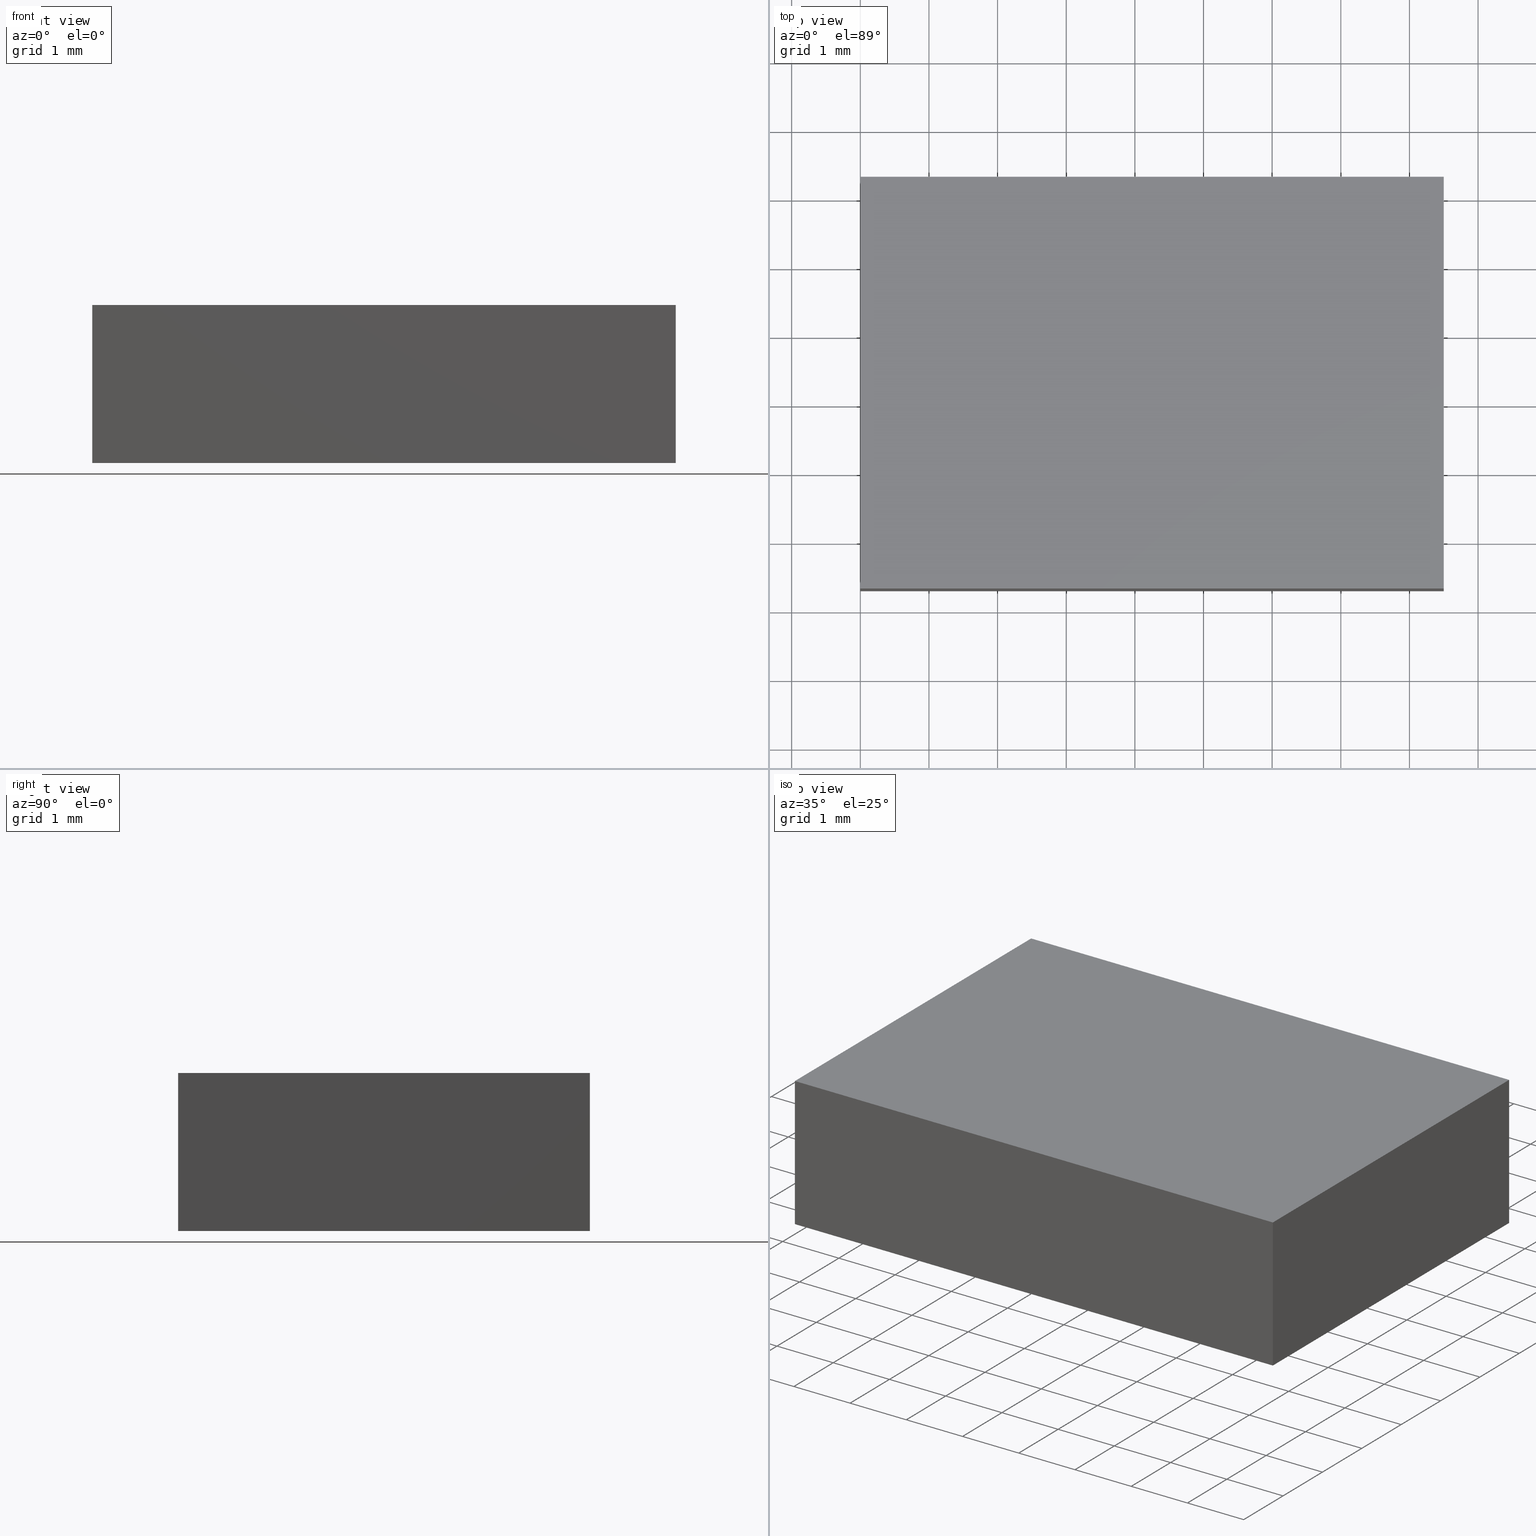
[diagram: canonical four-view strip — front | top / right | iso, engineering-drawing reading convention]
A machine part, canonical four-view strip (front | top / right | iso — engineering-drawing reading convention). The complete STEP part file that produces these views, byte-faithful:
ISO-10303-21;
HEADER;
FILE_DESCRIPTION (( 'STEP AP214' ),
    '1' );
FILE_NAME ('302503.STEP',
    '2019-08-13T02:38:50',
    ( '' ),
    ( '' ),
    'SwSTEP 2.0',
    'SolidWorks 2016',
    '' );
FILE_SCHEMA (( 'AUTOMOTIVE_DESIGN' ));
ENDSEC;

DATA;
#1 = CARTESIAN_POINT ( 'NONE',  ( 15.99958715517701600, 15.31264836690531800, 2.299999999999999800 ) ) ;
#2 = DIRECTION ( 'NONE',  ( -0.0000000000000000000, -0.0000000000000000000, -1.000000000000000000 ) ) ;
#3 = APPLICATION_CONTEXT ( 'automotive_design' ) ;
#4 = LINE ( 'NONE', #172, #96 ) ;
#5 = ORIENTED_EDGE ( 'NONE', *, *, #134, .F. ) ;
#6 = VECTOR ( 'NONE', #125, 1000.000000000000000 ) ;
#7 = PRESENTATION_LAYER_ASSIGNMENT (  '', '', ( #92 ) ) ;
#8 = SURFACE_STYLE_FILL_AREA ( #175 ) ;
#9 = DIRECTION ( 'NONE',  ( -0.0000000000000000000, -0.0000000000000000000, -1.000000000000000000 ) ) ;
#10 = CARTESIAN_POINT ( 'NONE',  ( 24.49958715517702100, 9.312648366905317900, 0.0000000000000000000 ) ) ;
#11 = VECTOR ( 'NONE', #120, 1000.000000000000000 ) ;
#12 = CARTESIAN_POINT ( 'NONE',  ( 15.99958715517702000, 9.312648366905321500, 2.299999999999999800 ) ) ;
#13 = DIRECTION ( 'NONE',  ( -1.000000000000000000, 4.081702296416016500E-016, 0.0000000000000000000 ) ) ;
#14 = DIRECTION ( 'NONE',  ( 4.081702296416016500E-016, 1.000000000000000000, -0.0000000000000000000 ) ) ;
#15 = EDGE_CURVE ( 'NONE', #156, #69, #195, .T. ) ;
#16 = FACE_OUTER_BOUND ( 'NONE', #73, .T. ) ;
#17 = UNCERTAINTY_MEASURE_WITH_UNIT (LENGTH_MEASURE( 1.000000000000000100E-005 ), #139, 'distance_accuracy_value', 'NONE');
#18 = LINE ( 'NONE', #155, #50 ) ;
#19 = PRODUCT_CONTEXT ( 'NONE', #80, 'mechanical' ) ;
#20 = DIRECTION ( 'NONE',  ( 0.0000000000000000000, 0.0000000000000000000, 1.000000000000000000 ) ) ;
#21 = EDGE_LOOP ( 'NONE', ( #184, #84, #25, #165 ) ) ;
#22 = ORIENTED_EDGE ( 'NONE', *, *, #57, .F. ) ;
#23 = COLOUR_RGB ( '',1.000000000000000000, 1.000000000000000000, 1.000000000000000000 ) ;
#24 = AXIS2_PLACEMENT_3D ( 'NONE', #36, #20, #38 ) ;
#25 = ORIENTED_EDGE ( 'NONE', *, *, #126, .F. ) ;
#26 = CARTESIAN_POINT ( 'NONE',  ( 15.99958715517701600, 15.31264836690531800, 0.0000000000000000000 ) ) ;
#27 = DIRECTION ( 'NONE',  ( 1.000000000000000000, 5.782411586589360600E-016, -0.0000000000000000000 ) ) ;
#28 = ORIENTED_EDGE ( 'NONE', *, *, #103, .T. ) ;
#29 = SHAPE_DEFINITION_REPRESENTATION ( #55, #33 ) ;
#30 = DIRECTION ( 'NONE',  ( 1.000000000000000000, -4.081702296416016500E-016, 0.0000000000000000000 ) ) ;
#31 = PLANE ( 'NONE',  #187 ) ;
#32 = CARTESIAN_POINT ( 'NONE',  ( 24.49958715517702100, 15.31264836690531600, 2.299999999999999800 ) ) ;
#33 = ADVANCED_BREP_SHAPE_REPRESENTATION ( '302503', ( #149, #24 ), #123 ) ;
#34 = CARTESIAN_POINT ( 'NONE',  ( 15.99958715517702000, 9.312648366905321500, 2.299999999999999800 ) ) ;
#35 = ORIENTED_EDGE ( 'NONE', *, *, #197, .F. ) ;
#36 = CARTESIAN_POINT ( 'NONE',  ( 0.0000000000000000000, 0.0000000000000000000, 0.0000000000000000000 ) ) ;
#37 =( NAMED_UNIT ( * ) SI_UNIT ( $, .STERADIAN. ) SOLID_ANGLE_UNIT ( ) );
#38 = DIRECTION ( 'NONE',  ( 1.000000000000000000, 0.0000000000000000000, 0.0000000000000000000 ) ) ;
#39 = LINE ( 'NONE', #137, #106 ) ;
#40 =( GEOMETRIC_REPRESENTATION_CONTEXT ( 3 ) GLOBAL_UNCERTAINTY_ASSIGNED_CONTEXT ( ( #110 ) ) GLOBAL_UNIT_ASSIGNED_CONTEXT ( ( #95, #189, #37 ) ) REPRESENTATION_CONTEXT ( 'NONE', 'WORKASPACE' ) );
#41 = EDGE_CURVE ( 'NONE', #117, #68, #39, .T. ) ;
#42 = LINE ( 'NONE', #111, #102 ) ;
#43 = LINE ( 'NONE', #143, #167 ) ;
#44 =( NAMED_UNIT ( * ) PLANE_ANGLE_UNIT ( ) SI_UNIT ( $, .RADIAN. ) );
#45 = CARTESIAN_POINT ( 'NONE',  ( 15.99958715517701600, 15.31264836690531800, 2.299999999999999800 ) ) ;
#46 = DIRECTION ( 'NONE',  ( 1.000000000000000000, 0.0000000000000000000, -0.0000000000000000000 ) ) ;
#47 = DIRECTION ( 'NONE',  ( 5.782411586589360600E-016, -1.000000000000000000, 0.0000000000000000000 ) ) ;
#48 = CARTESIAN_POINT ( 'NONE',  ( 0.0000000000000000000, 0.0000000000000000000, 0.0000000000000000000 ) ) ;
#49 = VECTOR ( 'NONE', #127, 1000.000000000000000 ) ;
#50 = VECTOR ( 'NONE', #170, 1000.000000000000000 ) ;
#51 = APPLICATION_PROTOCOL_DEFINITION ( 'draft international standard', 'automotive_design', 1998, #80 ) ;
#52 = PRODUCT_DEFINITION ( 'δ֪', '', #154, #86 ) ;
#53 = ORIENTED_EDGE ( 'NONE', *, *, #148, .T. ) ;
#54 = LINE ( 'NONE', #157, #11 ) ;
#55 = PRODUCT_DEFINITION_SHAPE ( 'NONE', 'NONE',  #52 ) ;
#56 = AXIS2_PLACEMENT_3D ( 'NONE', #199, #88, #105 ) ;
#57 = EDGE_CURVE ( 'NONE', #104, #72, #152, .T. ) ;
#58 = CARTESIAN_POINT ( 'NONE',  ( 15.99958715517702000, 9.312648366905321500, 0.0000000000000000000 ) ) ;
#59 = FILL_AREA_STYLE ('',( #168 ) ) ;
#60 = DIRECTION ( 'NONE',  ( 0.0000000000000000000, 0.0000000000000000000, 1.000000000000000000 ) ) ;
#61 = ORIENTED_EDGE ( 'NONE', *, *, #116, .F. ) ;
#62 =( NAMED_UNIT ( * ) SI_UNIT ( $, .STERADIAN. ) SOLID_ANGLE_UNIT ( ) );
#63 = EDGE_CURVE ( 'NONE', #150, #69, #191, .T. ) ;
#64 = DIRECTION ( 'NONE',  ( 0.0000000000000000000, 0.0000000000000000000, 1.000000000000000000 ) ) ;
#65 =( NAMED_UNIT ( * ) SI_UNIT ( $, .STERADIAN. ) SOLID_ANGLE_UNIT ( ) );
#66 = ORIENTED_EDGE ( 'NONE', *, *, #160, .T. ) ;
#67 = VECTOR ( 'NONE', #171, 1000.000000000000000 ) ;
#68 = VERTEX_POINT ( 'NONE', #26 ) ;
#69 = VERTEX_POINT ( 'NONE', #10 ) ;
#70 = VECTOR ( 'NONE', #9, 1000.000000000000000 ) ;
#71 = STYLED_ITEM ( 'NONE', ( #136 ), #149 ) ;
#72 = VERTEX_POINT ( 'NONE', #109 ) ;
#73 = EDGE_LOOP ( 'NONE', ( #183, #22, #78, #161 ) ) ;
#74 = ORIENTED_EDGE ( 'NONE', *, *, #103, .F. ) ;
#75 = PRODUCT_RELATED_PRODUCT_CATEGORY ( 'part', '', ( #198 ) ) ;
#76 = PLANE ( 'NONE',  #81 ) ;
#77 = AXIS2_PLACEMENT_3D ( 'NONE', #48, #64, #108 ) ;
#78 = ORIENTED_EDGE ( 'NONE', *, *, #148, .F. ) ;
#79 = SURFACE_SIDE_STYLE ('',( #8 ) ) ;
#80 = APPLICATION_CONTEXT ( 'automotive_design' ) ;
#81 = AXIS2_PLACEMENT_3D ( 'NONE', #122, #90, #107 ) ;
#82 = ORIENTED_EDGE ( 'NONE', *, *, #201, .F. ) ;
#83 = ADVANCED_FACE ( 'NONE', ( #87 ), #144, .F. ) ;
#84 = ORIENTED_EDGE ( 'NONE', *, *, #41, .F. ) ;
#85 = ADVANCED_FACE ( 'NONE', ( #128 ), #158, .F. ) ;
#86 = PRODUCT_DEFINITION_CONTEXT ( 'detailed design', #3, 'design' ) ;
#87 = FACE_OUTER_BOUND ( 'NONE', #193, .T. ) ;
#88 = DIRECTION ( 'NONE',  ( -1.000000000000000000, 0.0000000000000000000, 0.0000000000000000000 ) ) ;
#89 = EDGE_LOOP ( 'NONE', ( #28, #82, #5, #99 ) ) ;
#90 = DIRECTION ( 'NONE',  ( -2.040851148208007500E-016, -1.000000000000000000, 0.0000000000000000000 ) ) ;
#91 = DIRECTION ( 'NONE',  ( -0.0000000000000000000, -0.0000000000000000000, -1.000000000000000000 ) ) ;
#92 = STYLED_ITEM ( 'NONE', ( #173 ), #33 ) ;
#93 = CARTESIAN_POINT ( 'NONE',  ( 15.99958715517702000, 9.312648366905321500, 2.299999999999999800 ) ) ;
#94 = LINE ( 'NONE', #112, #49 ) ;
#95 =( LENGTH_UNIT ( ) NAMED_UNIT ( * ) SI_UNIT ( .MILLI., .METRE. ) );
#96 = VECTOR ( 'NONE', #101, 1000.000000000000000 ) ;
#97 = ORIENTED_EDGE ( 'NONE', *, *, #201, .T. ) ;
#98 = FACE_OUTER_BOUND ( 'NONE', #21, .T. ) ;
#99 = ORIENTED_EDGE ( 'NONE', *, *, #41, .T. ) ;
#100 = VERTEX_POINT ( 'NONE', #34 ) ;
#101 = DIRECTION ( 'NONE',  ( -1.000000000000000000, 2.040851148208007300E-016, -0.0000000000000000000 ) ) ;
#102 = VECTOR ( 'NONE', #2, 1000.000000000000000 ) ;
#103 = EDGE_CURVE ( 'NONE', #68, #150, #43, .T. ) ;
#104 = VERTEX_POINT ( 'NONE', #32 ) ;
#105 = DIRECTION ( 'NONE',  ( 0.0000000000000000000, 0.0000000000000000000, 1.000000000000000000 ) ) ;
#106 = VECTOR ( 'NONE', #91, 1000.000000000000000 ) ;
#107 = DIRECTION ( 'NONE',  ( 1.000000000000000000, -2.040851148208007500E-016, 0.0000000000000000000 ) ) ;
#108 = DIRECTION ( 'NONE',  ( 1.000000000000000000, 0.0000000000000000000, -0.0000000000000000000 ) ) ;
#109 = CARTESIAN_POINT ( 'NONE',  ( 24.49958715517702100, 15.31264836690531600, 0.0000000000000000000 ) ) ;
#110 = UNCERTAINTY_MEASURE_WITH_UNIT (LENGTH_MEASURE( 1.000000000000000100E-005 ), #95, 'distance_accuracy_value', 'NONE');
#111 = CARTESIAN_POINT ( 'NONE',  ( 15.99958715517702000, 9.312648366905321500, 2.299999999999999800 ) ) ;
#112 = CARTESIAN_POINT ( 'NONE',  ( 24.49958715517702100, 15.31264836690531600, 0.0000000000000000000 ) ) ;
#113 = EDGE_LOOP ( 'NONE', ( #162, #66, #53, #151 ) ) ;
#114 = ORIENTED_EDGE ( 'NONE', *, *, #63, .F. ) ;
#115 = MECHANICAL_DESIGN_GEOMETRIC_PRESENTATION_REPRESENTATION (  '', ( #92 ), #40 ) ;
#116 = EDGE_CURVE ( 'NONE', #72, #68, #4, .T. ) ;
#117 = VERTEX_POINT ( 'NONE', #1 ) ;
#118 = ORIENTED_EDGE ( 'NONE', *, *, #63, .T. ) ;
#119 = DIRECTION ( 'NONE',  ( -0.0000000000000000000, -0.0000000000000000000, -1.000000000000000000 ) ) ;
#120 = DIRECTION ( 'NONE',  ( 5.782411586589360600E-016, -1.000000000000000000, 0.0000000000000000000 ) ) ;
#121 = CARTESIAN_POINT ( 'NONE',  ( 24.49958715517702100, 9.312648366905317900, 2.299999999999999800 ) ) ;
#122 = CARTESIAN_POINT ( 'NONE',  ( 15.99958715517701600, 15.31264836690531800, 2.299999999999999800 ) ) ;
#123 =( GEOMETRIC_REPRESENTATION_CONTEXT ( 3 ) GLOBAL_UNCERTAINTY_ASSIGNED_CONTEXT ( ( #188 ) ) GLOBAL_UNIT_ASSIGNED_CONTEXT ( ( #163, #129, #65 ) ) REPRESENTATION_CONTEXT ( 'NONE', 'WORKASPACE' ) );
#124 = ORIENTED_EDGE ( 'NONE', *, *, #15, .F. ) ;
#125 = DIRECTION ( 'NONE',  ( -1.000000000000000000, 2.040851148208007300E-016, -0.0000000000000000000 ) ) ;
#126 = EDGE_CURVE ( 'NONE', #104, #117, #164, .T. ) ;
#127 = DIRECTION ( 'NONE',  ( -0.0000000000000000000, 1.000000000000000000, -0.0000000000000000000 ) ) ;
#128 = FACE_OUTER_BOUND ( 'NONE', #194, .T. ) ;
#129 =( NAMED_UNIT ( * ) PLANE_ANGLE_UNIT ( ) SI_UNIT ( $, .RADIAN. ) );
#130 = LINE ( 'NONE', #12, #186 ) ;
#131 = FACE_OUTER_BOUND ( 'NONE', #113, .T. ) ;
#132 = ADVANCED_FACE ( 'NONE', ( #176 ), #141, .F. ) ;
#133 = ORIENTED_EDGE ( 'NONE', *, *, #160, .F. ) ;
#134 = EDGE_CURVE ( 'NONE', #117, #100, #54, .T. ) ;
#135 = ADVANCED_FACE ( 'NONE', ( #131 ), #31, .T. ) ;
#136 = PRESENTATION_STYLE_ASSIGNMENT (( #138 ) ) ;
#137 = CARTESIAN_POINT ( 'NONE',  ( 15.99958715517701600, 15.31264836690531800, 2.299999999999999800 ) ) ;
#138 = SURFACE_STYLE_USAGE ( .BOTH. , #202 ) ;
#139 =( LENGTH_UNIT ( ) NAMED_UNIT ( * ) SI_UNIT ( .MILLI., .METRE. ) );
#140 = CARTESIAN_POINT ( 'NONE',  ( 24.49958715517702100, 15.31264836690531600, 2.299999999999999800 ) ) ;
#141 = PLANE ( 'NONE',  #166 ) ;
#142 = DIRECTION ( 'NONE',  ( -5.782411586589360600E-016, 1.000000000000000000, 0.0000000000000000000 ) ) ;
#143 = CARTESIAN_POINT ( 'NONE',  ( 15.99958715517701600, 15.31264836690531800, 0.0000000000000000000 ) ) ;
#144 = PLANE ( 'NONE',  #179 ) ;
#145 = SURFACE_STYLE_FILL_AREA ( #59 ) ;
#146 = SURFACE_STYLE_USAGE ( .BOTH. , #79 ) ;
#147 = VECTOR ( 'NONE', #119, 1000.000000000000000 ) ;
#148 = EDGE_CURVE ( 'NONE', #156, #104, #18, .T. ) ;
#149 = MANIFOLD_SOLID_BREP ( '͹̨-����1', #153 ) ;
#150 = VERTEX_POINT ( 'NONE', #181 ) ;
#151 = ORIENTED_EDGE ( 'NONE', *, *, #126, .T. ) ;
#152 = LINE ( 'NONE', #140, #147 ) ;
#153 = CLOSED_SHELL ( 'NONE', ( #132, #83, #196, #178, #135, #85 ) ) ;
#154 = PRODUCT_DEFINITION_FORMATION_WITH_SPECIFIED_SOURCE ( '�κ�', '', #198, .NOT_KNOWN. ) ;
#155 = CARTESIAN_POINT ( 'NONE',  ( 24.49958715517702100, 15.31264836690531600, 2.299999999999999800 ) ) ;
#156 = VERTEX_POINT ( 'NONE', #182 ) ;
#157 = CARTESIAN_POINT ( 'NONE',  ( 15.99958715517701600, 15.31264836690531800, 2.299999999999999800 ) ) ;
#158 = PLANE ( 'NONE',  #77 ) ;
#159 = MECHANICAL_DESIGN_GEOMETRIC_PRESENTATION_REPRESENTATION (  '', ( #71 ), #169 ) ;
#160 = EDGE_CURVE ( 'NONE', #100, #156, #130, .T. ) ;
#161 = ORIENTED_EDGE ( 'NONE', *, *, #15, .T. ) ;
#162 = ORIENTED_EDGE ( 'NONE', *, *, #134, .T. ) ;
#163 =( LENGTH_UNIT ( ) NAMED_UNIT ( * ) SI_UNIT ( .MILLI., .METRE. ) );
#164 = LINE ( 'NONE', #177, #6 ) ;
#165 = ORIENTED_EDGE ( 'NONE', *, *, #57, .T. ) ;
#166 = AXIS2_PLACEMENT_3D ( 'NONE', #45, #27, #142 ) ;
#167 = VECTOR ( 'NONE', #47, 1000.000000000000000 ) ;
#168 = FILL_AREA_STYLE_COLOUR ( '', #180 ) ;
#169 =( GEOMETRIC_REPRESENTATION_CONTEXT ( 3 ) GLOBAL_UNCERTAINTY_ASSIGNED_CONTEXT ( ( #17 ) ) GLOBAL_UNIT_ASSIGNED_CONTEXT ( ( #139, #44, #62 ) ) REPRESENTATION_CONTEXT ( 'NONE', 'WORKASPACE' ) );
#170 = DIRECTION ( 'NONE',  ( -0.0000000000000000000, 1.000000000000000000, -0.0000000000000000000 ) ) ;
#171 = DIRECTION ( 'NONE',  ( 1.000000000000000000, -4.081702296416016500E-016, 0.0000000000000000000 ) ) ;
#172 = CARTESIAN_POINT ( 'NONE',  ( 15.99958715517701600, 15.31264836690531800, 0.0000000000000000000 ) ) ;
#173 = PRESENTATION_STYLE_ASSIGNMENT (( #146 ) ) ;
#174 = FILL_AREA_STYLE_COLOUR ( '', #23 ) ;
#175 = FILL_AREA_STYLE ('',( #174 ) ) ;
#176 = FACE_OUTER_BOUND ( 'NONE', #89, .T. ) ;
#177 = CARTESIAN_POINT ( 'NONE',  ( 15.99958715517701600, 15.31264836690531800, 2.299999999999999800 ) ) ;
#178 = ADVANCED_FACE ( 'NONE', ( #98 ), #76, .F. ) ;
#179 = AXIS2_PLACEMENT_3D ( 'NONE', #93, #14, #13 ) ;
#180 = COLOUR_RGB ( '',1.000000000000000000, 1.000000000000000000, 1.000000000000000000 ) ;
#181 = CARTESIAN_POINT ( 'NONE',  ( 15.99958715517702000, 9.312648366905321500, 0.0000000000000000000 ) ) ;
#182 = CARTESIAN_POINT ( 'NONE',  ( 24.49958715517702100, 9.312648366905317900, 2.299999999999999800 ) ) ;
#183 = ORIENTED_EDGE ( 'NONE', *, *, #197, .T. ) ;
#184 = ORIENTED_EDGE ( 'NONE', *, *, #116, .T. ) ;
#185 = PLANE ( 'NONE',  #56 ) ;
#186 = VECTOR ( 'NONE', #30, 1000.000000000000000 ) ;
#187 = AXIS2_PLACEMENT_3D ( 'NONE', #200, #60, #46 ) ;
#188 = UNCERTAINTY_MEASURE_WITH_UNIT (LENGTH_MEASURE( 1.000000000000000100E-005 ), #163, 'distance_accuracy_value', 'NONE');
#189 =( NAMED_UNIT ( * ) PLANE_ANGLE_UNIT ( ) SI_UNIT ( $, .RADIAN. ) );
#190 = APPLICATION_PROTOCOL_DEFINITION ( 'draft international standard', 'automotive_design', 1998, #3 ) ;
#191 = LINE ( 'NONE', #58, #67 ) ;
#192 = PRESENTATION_LAYER_ASSIGNMENT (  '', '', ( #71 ) ) ;
#193 = EDGE_LOOP ( 'NONE', ( #118, #124, #133, #97 ) ) ;
#194 = EDGE_LOOP ( 'NONE', ( #74, #61, #35, #114 ) ) ;
#195 = LINE ( 'NONE', #121, #70 ) ;
#196 = ADVANCED_FACE ( 'NONE', ( #16 ), #185, .F. ) ;
#197 = EDGE_CURVE ( 'NONE', #69, #72, #94, .T. ) ;
#198 = PRODUCT ( '302503', '302503', '', ( #19 ) ) ;
#199 = CARTESIAN_POINT ( 'NONE',  ( 24.49958715517702100, 15.31264836690531600, 2.299999999999999800 ) ) ;
#200 = CARTESIAN_POINT ( 'NONE',  ( 0.0000000000000000000, 0.0000000000000000000, 2.299999999999999800 ) ) ;
#201 = EDGE_CURVE ( 'NONE', #100, #150, #42, .T. ) ;
#202 = SURFACE_SIDE_STYLE ('',( #145 ) ) ;
ENDSEC;
END-ISO-10303-21;
